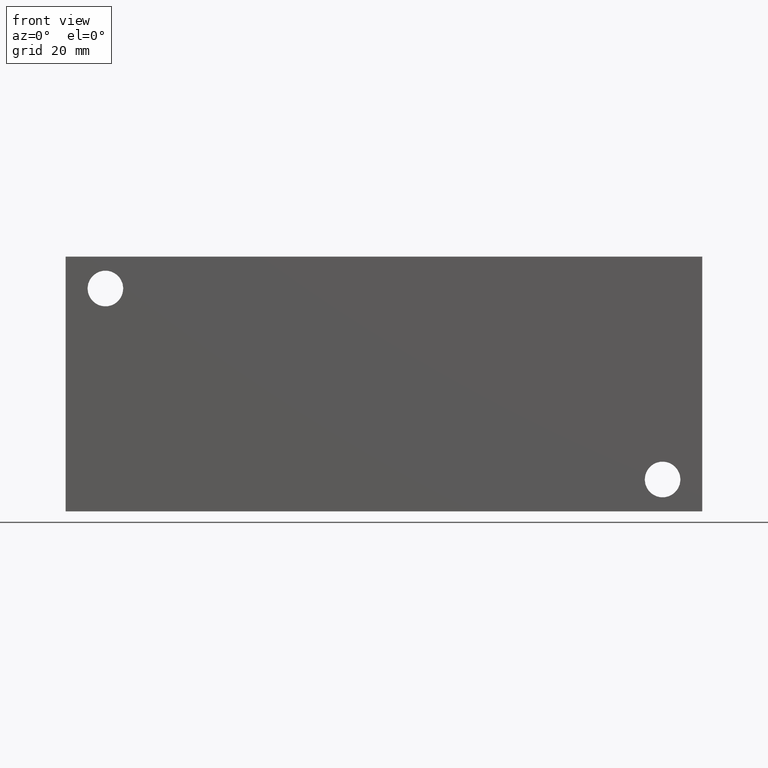
[diagram: clean part render]
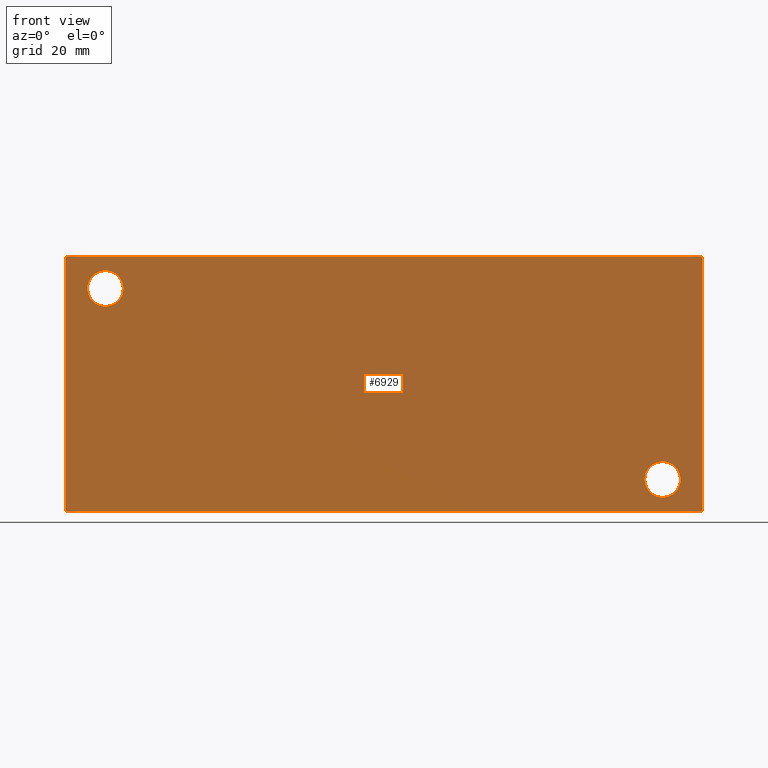
[diagram: same view with one face highlighted and labeled with its STEP entity id]
A machine part, front view. The second image highlights one B-rep face of the part: STEP entity #6929.
In plain terms, the highlighted planar face has unit normal (0, -1, 0).
Its self-contained STEP definition (entity closure, byte-faithful):
#84=CIRCLE('',#7209,3.5687);
#85=CIRCLE('',#7210,3.5687);
#87=CIRCLE('',#7219,3.5687);
#88=CIRCLE('',#7220,3.5687);
#451=FACE_BOUND('',#1198,.T.);
#452=FACE_BOUND('',#1199,.T.);
#804=FACE_OUTER_BOUND('',#1197,.T.);
#1197=EDGE_LOOP('',(#6032,#6033,#6034,#6035));
#1198=EDGE_LOOP('',(#6036,#6037));
#1199=EDGE_LOOP('',(#6038,#6039));
#1583=LINE('',#9464,#2266);
#1882=LINE('',#11811,#2565);
#1887=LINE('',#11820,#2570);
#1888=LINE('',#11822,#2571);
#2266=VECTOR('',#7901,10.);
#2565=VECTOR('',#8544,10.);
#2570=VECTOR('',#8553,10.);
#2571=VECTOR('',#8556,10.);
#2834=VERTEX_POINT('',#9462);
#2835=VERTEX_POINT('',#9463);
#3182=VERTEX_POINT('',#11728);
#3183=VERTEX_POINT('',#11729);
#3187=VERTEX_POINT('',#11746);
#3188=VERTEX_POINT('',#11747);
#3207=VERTEX_POINT('',#11809);
#3209=VERTEX_POINT('',#11818);
#3603=EDGE_CURVE('',#2834,#2835,#1583,.T.);
#4111=EDGE_CURVE('',#3182,#3183,#84,.T.);
#4112=EDGE_CURVE('',#3183,#3182,#85,.T.);
#4121=EDGE_CURVE('',#3187,#3188,#87,.T.);
#4122=EDGE_CURVE('',#3188,#3187,#88,.T.);
#4152=EDGE_CURVE('',#3207,#2834,#1882,.T.);
#4157=EDGE_CURVE('',#3209,#2835,#1887,.T.);
#4158=EDGE_CURVE('',#3207,#3209,#1888,.T.);
#6032=ORIENTED_EDGE('',*,*,#4158,.T.);
#6033=ORIENTED_EDGE('',*,*,#4157,.T.);
#6034=ORIENTED_EDGE('',*,*,#3603,.F.);
#6035=ORIENTED_EDGE('',*,*,#4152,.F.);
#6036=ORIENTED_EDGE('',*,*,#4111,.T.);
#6037=ORIENTED_EDGE('',*,*,#4112,.T.);
#6038=ORIENTED_EDGE('',*,*,#4121,.T.);
#6039=ORIENTED_EDGE('',*,*,#4122,.T.);
#6276=PLANE('',#7253);
#6929=ADVANCED_FACE('',(#804,#451,#452),#6276,.T.);
#7209=AXIS2_PLACEMENT_3D('',#11730,#8445,#8446);
#7210=AXIS2_PLACEMENT_3D('',#11731,#8447,#8448);
#7219=AXIS2_PLACEMENT_3D('',#11748,#8468,#8469);
#7220=AXIS2_PLACEMENT_3D('',#11749,#8470,#8471);
#7253=AXIS2_PLACEMENT_3D('',#11821,#8554,#8555);
#7901=DIRECTION('',(1.,0.,0.));
#8445=DIRECTION('center_axis',(0.,1.,0.));
#8446=DIRECTION('ref_axis',(1.,0.,0.));
#8447=DIRECTION('center_axis',(0.,1.,0.));
#8448=DIRECTION('ref_axis',(1.,0.,0.));
#8468=DIRECTION('center_axis',(0.,1.,0.));
#8469=DIRECTION('ref_axis',(1.,0.,0.));
#8470=DIRECTION('center_axis',(0.,1.,0.));
#8471=DIRECTION('ref_axis',(1.,0.,0.));
#8544=DIRECTION('',(0.,0.,1.));
#8553=DIRECTION('',(0.,0.,1.));
#8554=DIRECTION('center_axis',(0.,-1.,0.));
#8555=DIRECTION('ref_axis',(1.,0.,0.));
#8556=DIRECTION('',(1.,0.,0.));
#9462=CARTESIAN_POINT('',(0.,0.,50.8));
#9463=CARTESIAN_POINT('',(127.,0.,50.8));
#9464=CARTESIAN_POINT('',(0.,0.,50.8));
#11728=CARTESIAN_POINT('',(122.6439,0.,6.35));
#11729=CARTESIAN_POINT('',(115.5065,-1.77635683940025E-14,6.35));
#11730=CARTESIAN_POINT('Origin',(119.0752,0.,6.35));
#11731=CARTESIAN_POINT('Origin',(119.0752,0.,6.35));
#11746=CARTESIAN_POINT('',(11.4935,0.,44.45));
#11747=CARTESIAN_POINT('',(4.3561,-1.77635683940025E-14,44.45));
#11748=CARTESIAN_POINT('Origin',(7.9248,0.,44.45));
#11749=CARTESIAN_POINT('Origin',(7.9248,0.,44.45));
#11809=CARTESIAN_POINT('',(0.,0.,0.));
#11811=CARTESIAN_POINT('',(0.,0.,0.));
#11818=CARTESIAN_POINT('',(127.,0.,0.));
#11820=CARTESIAN_POINT('',(127.,0.,0.));
#11821=CARTESIAN_POINT('Origin',(0.,0.,0.));
#11822=CARTESIAN_POINT('',(0.,0.,0.));